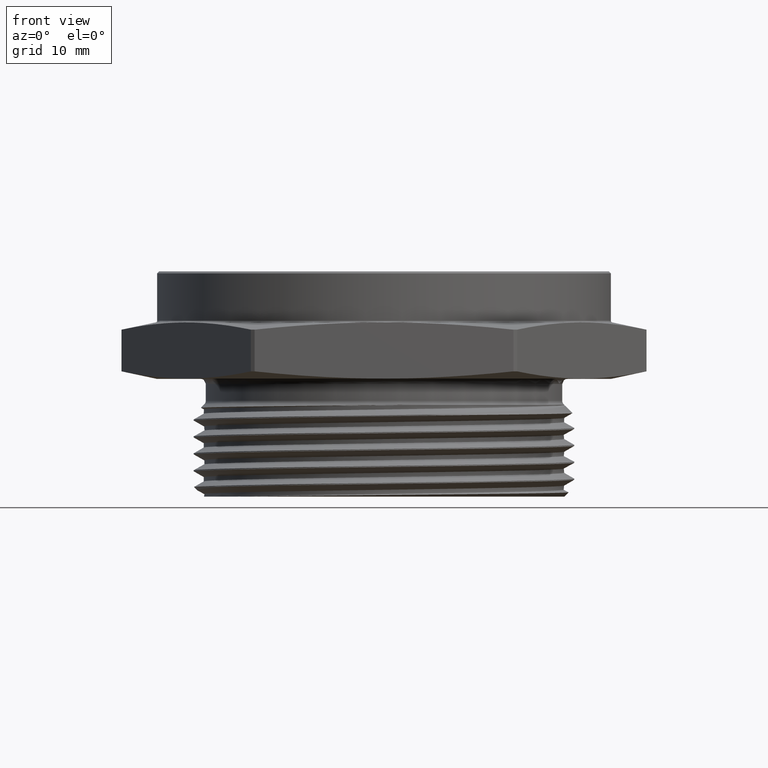
[diagram: clean part render]
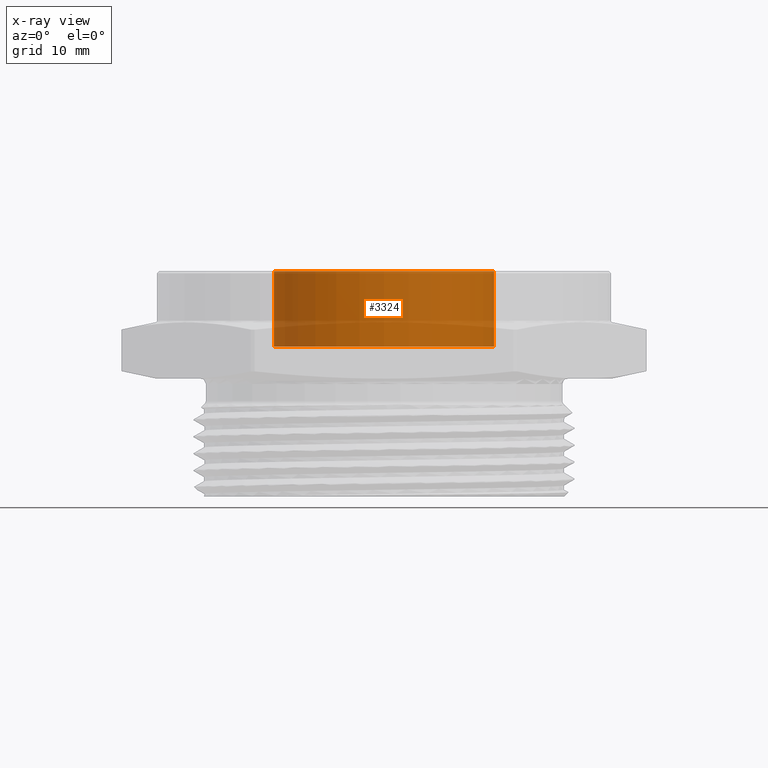
[diagram: x-ray — body ghosted, one internal face saturated and labeled with its STEP entity id]
A machine part, front view, then the same camera in x-ray: the body is ghosted and one INTERNAL B-rep face — a face not visible from any outside direction — is saturated and labeled: STEP entity #3324.
In plain terms, the highlighted cylindrical surface (partial cylindrical patch) has radius 13.7668 mm, axis along (0, 0, 1).
Its self-contained STEP definition (entity closure, byte-faithful):
#117 = VERTEX_POINT ( 'NONE', #2735 ) ;
#129 = VERTEX_POINT ( 'NONE', #2725 ) ;
#435 = AXIS2_PLACEMENT_3D ( 'NONE', #2057, #2058, #2059 ) ;
#436 = AXIS2_PLACEMENT_3D ( 'NONE', #2062, #2063, #2064 ) ;
#463 = AXIS2_PLACEMENT_3D ( 'NONE', #1668, #1669, #1667 ) ;
#581 = LINE ( 'NONE', #2046, #583 ) ;
#582 = LINE ( 'NONE', #2052, #587 ) ;
#583 = VECTOR ( 'NONE', #2047, 39.37007874015748100 ) ;
#585 = CIRCLE ( 'NONE', #435, 0.5420000000000000400 ) ;
#587 = VECTOR ( 'NONE', #2048, 39.37007874015748100 ) ;
#588 = CIRCLE ( 'NONE', #436, 0.5420000000000000400 ) ;
#746 = EDGE_CURVE ( 'NONE', #117, #2441, #581, .T. ) ;
#749 = EDGE_CURVE ( 'NONE', #2432, #129, #582, .T. ) ;
#750 = EDGE_CURVE ( 'NONE', #117, #2432, #585, .T. ) ;
#751 = EDGE_CURVE ( 'NONE', #2441, #129, #588, .T. ) ;
#1667 = DIRECTION ( 'NONE',  ( 1.000000000000000000, 0.0000000000000000000, 0.0000000000000000000 ) ) ;
#1668 = CARTESIAN_POINT ( 'NONE',  ( 0.0000000000000000000, 0.0000000000000000000, 0.1600000000000000000 ) ) ;
#1669 = DIRECTION ( 'NONE',  ( 0.0000000000000000000, 0.0000000000000000000, 1.000000000000000000 ) ) ;
#1675 = EDGE_LOOP ( 'NONE', ( #1721, #1722, #1723, #1724 ) ) ;
#1721 = ORIENTED_EDGE ( 'NONE', *, *, #746, .F. ) ;
#1722 = ORIENTED_EDGE ( 'NONE', *, *, #750, .T. ) ;
#1723 = ORIENTED_EDGE ( 'NONE', *, *, #749, .T. ) ;
#1724 = ORIENTED_EDGE ( 'NONE', *, *, #751, .F. ) ;
#2046 = CARTESIAN_POINT ( 'NONE',  ( -0.5420000000000000400, 6.637585651378654500E-017, 0.1600000000000000000 ) ) ;
#2047 = DIRECTION ( 'NONE',  ( 0.0000000000000000000, 0.0000000000000000000, 1.000000000000000000 ) ) ;
#2048 = DIRECTION ( 'NONE',  ( 0.0000000000000000000, 0.0000000000000000000, 1.000000000000000000 ) ) ;
#2052 = CARTESIAN_POINT ( 'NONE',  ( 0.5420000000000000400, 0.0000000000000000000, 0.1600000000000000000 ) ) ;
#2057 = CARTESIAN_POINT ( 'NONE',  ( 0.0000000000000000000, 0.0000000000000000000, 0.1600000000000000000 ) ) ;
#2058 = DIRECTION ( 'NONE',  ( 0.0000000000000000000, 0.0000000000000000000, 1.000000000000000000 ) ) ;
#2059 = DIRECTION ( 'NONE',  ( 1.000000000000000000, 0.0000000000000000000, 0.0000000000000000000 ) ) ;
#2060 = CARTESIAN_POINT ( 'NONE',  ( -0.5420000000000000400, 6.637585651378654500E-017, 0.5300000000000000300 ) ) ;
#2061 = CARTESIAN_POINT ( 'NONE',  ( 0.5420000000000000400, 0.0000000000000000000, 0.1600000000000000000 ) ) ;
#2062 = CARTESIAN_POINT ( 'NONE',  ( 0.0000000000000000000, 0.0000000000000000000, 0.5300000000000000300 ) ) ;
#2063 = DIRECTION ( 'NONE',  ( 0.0000000000000000000, 0.0000000000000000000, 1.000000000000000000 ) ) ;
#2064 = DIRECTION ( 'NONE',  ( 1.000000000000000000, 0.0000000000000000000, 0.0000000000000000000 ) ) ;
#2432 = VERTEX_POINT ( 'NONE', #2061 ) ;
#2441 = VERTEX_POINT ( 'NONE', #2060 ) ;
#2451 = FACE_OUTER_BOUND ( 'NONE', #1675, .T. ) ;
#2459 = CYLINDRICAL_SURFACE ( 'NONE', #463, 0.5420000000000000400 ) ;
#2725 = CARTESIAN_POINT ( 'NONE',  ( 0.5420000000000000400, 0.0000000000000000000, 0.5300000000000000300 ) ) ;
#2735 = CARTESIAN_POINT ( 'NONE',  ( -0.5420000000000000400, 6.637585651378654500E-017, 0.1600000000000000000 ) ) ;
#3324 = ADVANCED_FACE ( 'NONE', ( #2451 ), #2459, .T. ) ;